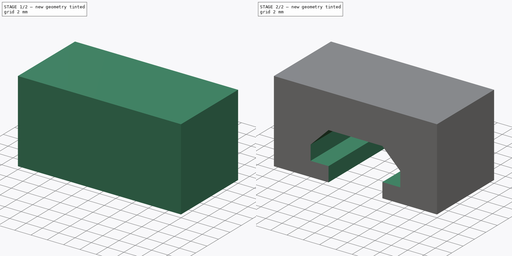
[diagram: build sequence overview — one tinted view per stage of 2, left to right]
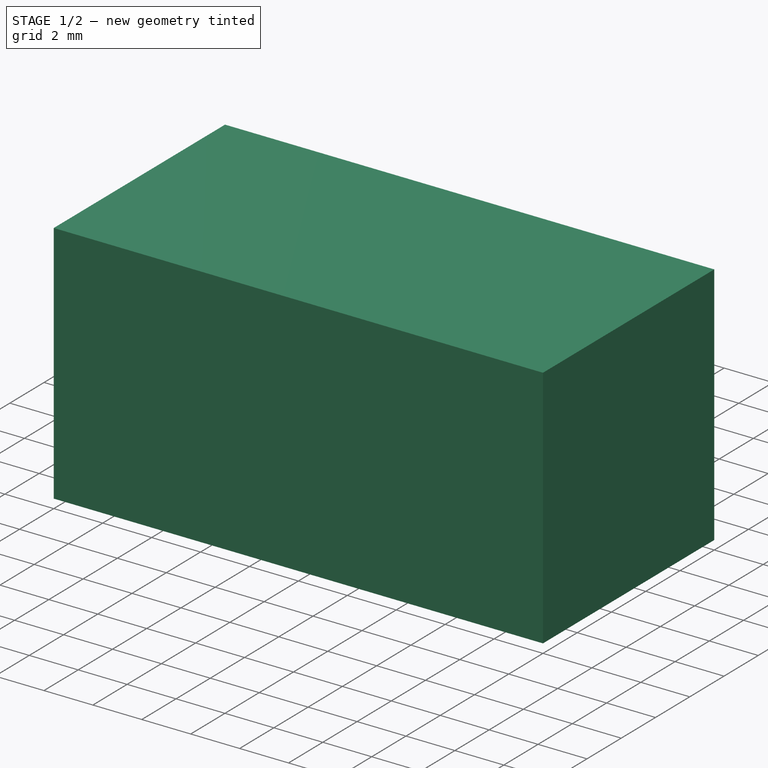
[diagram: stage 1 of 2 — iso view after this stage's code; geometry added in this stage tinted green]
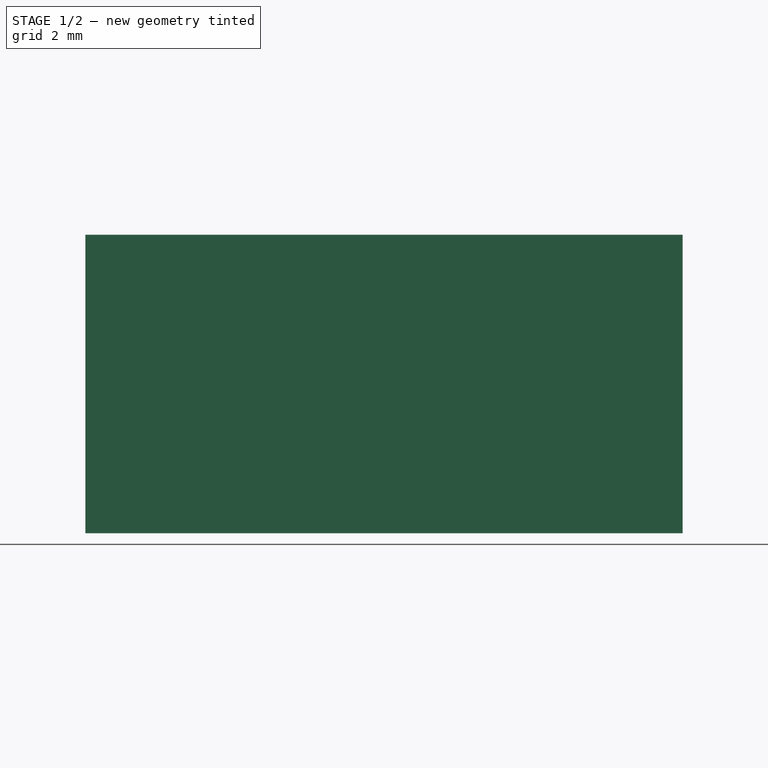
[diagram: stage 1 of 2 — front view after this stage's code; geometry added in this stage tinted green]
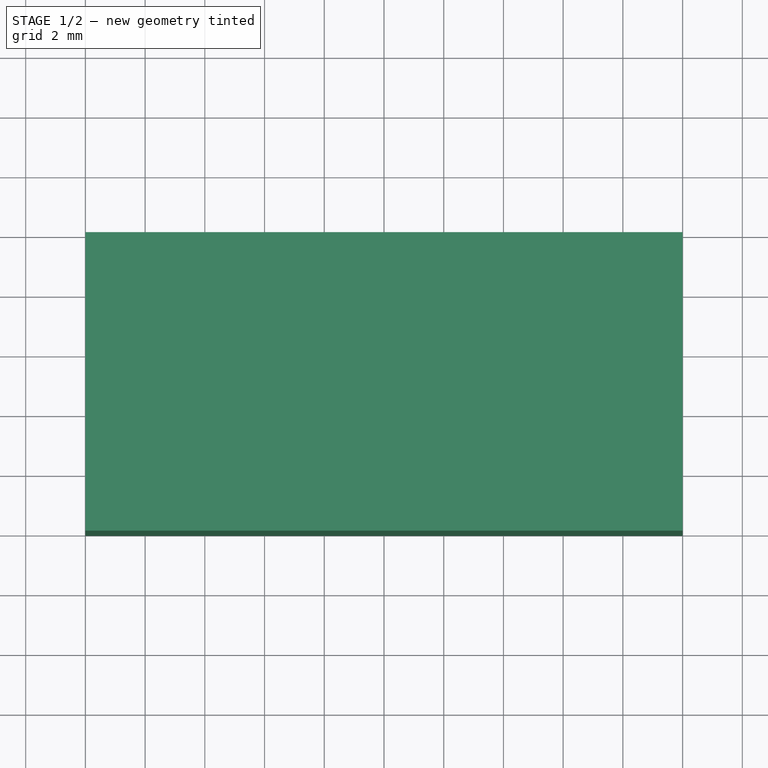
[diagram: stage 1 of 2 — top view after this stage's code; geometry added in this stage tinted green]
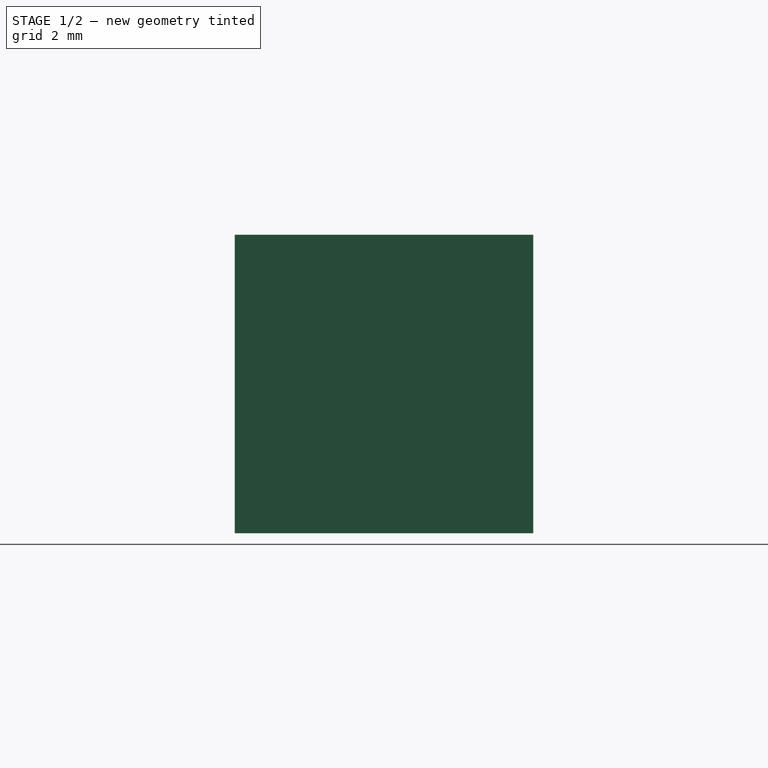
[diagram: stage 1 of 2 — right view after this stage's code; geometry added in this stage tinted green]
FCSTD DOCUMENT  (FreeCAD 1.0R39109 (Git))
Label: 05 Rail Slot
License: All rights reserved
LicenseURL: https://en.wikipedia.org/wiki/All_rights_reserved
objects: Sketcher::SketchObject×2, PartDesign::Pad×1, PartDesign::Pocket×1, PartDesign::Body×1
note: 11 computed .brp shape members not serialized (recipe doc carries the construction recipe); baked Part::Feature solids carry a one-line shape summary decoded from their .brp

FEATURE [Sketcher::SketchObject] Sketch
  ArcFitTolerance = 1e-06
  AttachmentSupport = -> [XZ_Plane]
  FullyConstrained = true
  MakeInternals = false
  MapMode = 5
  Placement = pos=(0,0,0) rot=(1,0,0;1.5708rad)
  sketch-geometry (4):
    g0: LineSegment StartX=-10 StartY=10 StartZ=0 EndX=-10 EndY=0 EndZ=0
    g1: LineSegment StartX=-10 StartY=0 StartZ=0 EndX=10 EndY=0 EndZ=0
    g2: LineSegment StartX=10 StartY=0 StartZ=0 EndX=10 EndY=10 EndZ=0
    g3: LineSegment StartX=10 StartY=10 StartZ=0 EndX=-10 EndY=10 EndZ=0
  constraints (12):
    c: Coincident(g0,g1)
    c: Coincident(g1,g2)
    c: Coincident(g2,g3)
    c: Coincident(g3,g0)
    c: Vertical(g0)
    c: Vertical(g2)
    c: Horizontal(g1)
    c: Horizontal(g3)
    c: Distance(g0,g2) = 20
    c: Distance(g1,g3) = 10
    c: DistanceY(g-1,g0) = 0
    c: DistanceX(g0,g-1) = 10
FEATURE [PartDesign::Pad] Pad
  Direction = (0,-1,2e-16)
  Length = 10
  Length2 = 10
  Placement = pos=(0,0,0) rot=(1,0,0;1.5708rad)
  Profile = -> Sketch
  ReferenceAxis = -> Sketch [N_Axis]
  Refine = true
  Suppressed = false
  Type = 0
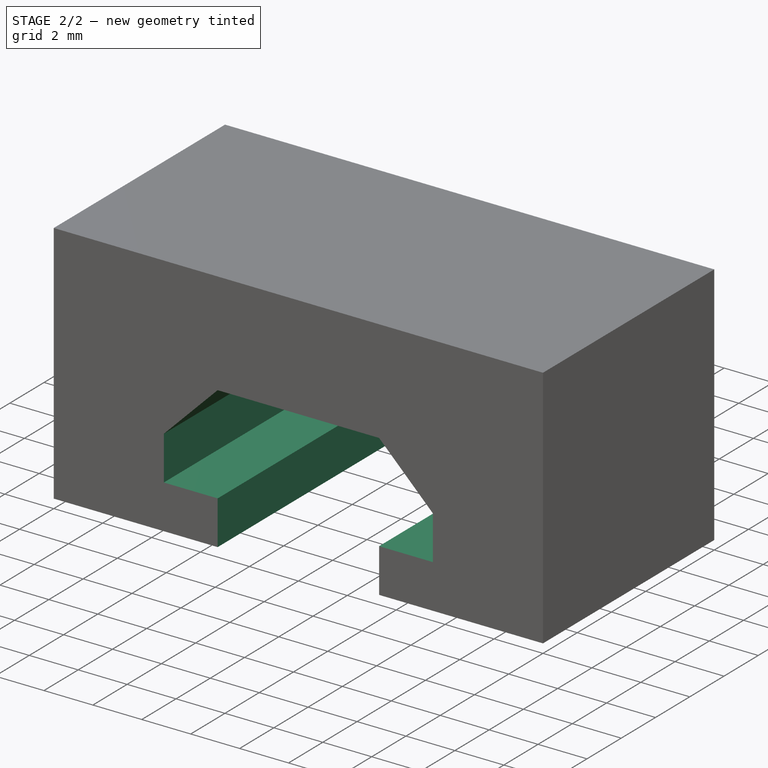
[diagram: stage 2 of 2 — iso view after this stage's code; geometry added in this stage tinted green]
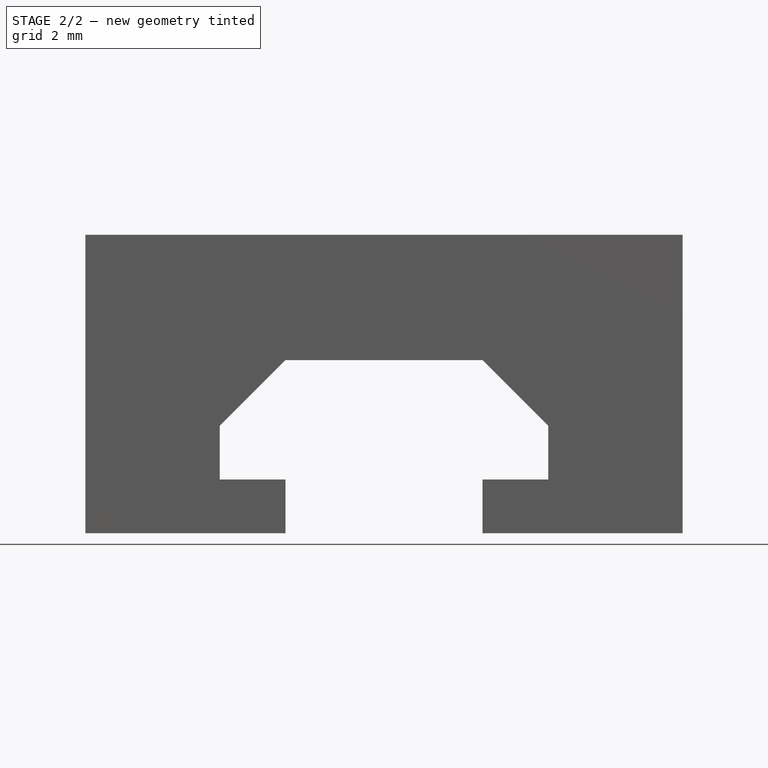
[diagram: stage 2 of 2 — front view after this stage's code; geometry added in this stage tinted green]
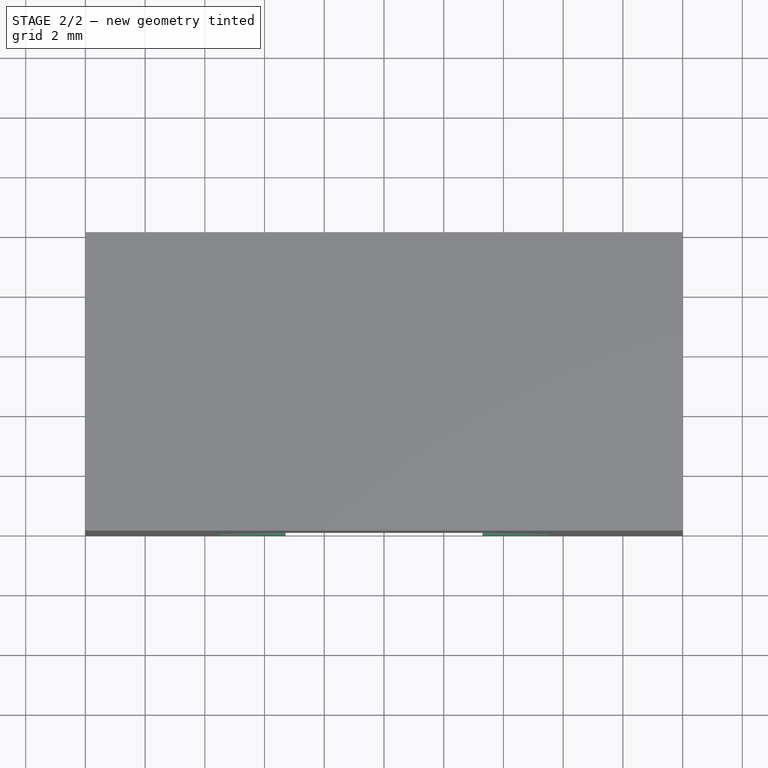
[diagram: stage 2 of 2 — top view after this stage's code; geometry added in this stage tinted green]
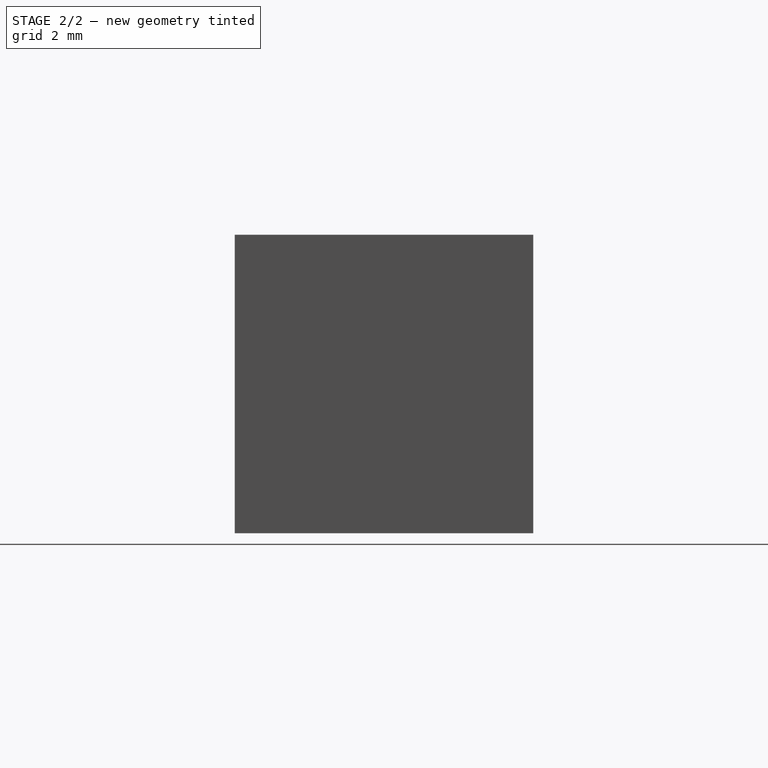
[diagram: stage 2 of 2 — right view after this stage's code; geometry added in this stage tinted green]
FEATURE [Sketcher::SketchObject] Sketch001
  ArcFitTolerance = 1e-06
  AttachmentSupport = -> [Pad]
  FullyConstrained = true
  MakeInternals = false
  MapMode = 5
  Placement = pos=(0,-10,0) rot=(1,0,0;1.5708rad)
  sketch-geometry (10):
    g0: LineSegment StartX=-3.3 StartY=0 StartZ=0 EndX=3.3 EndY=0 EndZ=0
    g1: LineSegment StartX=3.3 StartY=0 StartZ=0 EndX=3.3 EndY=1.8 EndZ=0
    g2: LineSegment StartX=3.3 StartY=1.8 StartZ=0 EndX=5.5 EndY=1.8 EndZ=0
    g3: LineSegment StartX=5.5 StartY=1.8 StartZ=0 EndX=5.5 EndY=3.6 EndZ=0
    g4: LineSegment StartX=5.5 StartY=3.6 StartZ=0 EndX=3.3 EndY=5.8 EndZ=0
    g5: LineSegment StartX=3.3 StartY=5.8 StartZ=0 EndX=-3.3 EndY=5.8 EndZ=0
    g6: LineSegment StartX=-3.3 StartY=5.8 StartZ=0 EndX=-5.5 EndY=3.6 EndZ=0
    g7: LineSegment StartX=-5.5 StartY=3.6 StartZ=0 EndX=-5.5 EndY=1.8 EndZ=0
    g8: LineSegment StartX=-5.5 StartY=1.8 StartZ=0 EndX=-3.3 EndY=1.8 EndZ=0
    g9: LineSegment StartX=-3.3 StartY=1.8 StartZ=0 EndX=-3.3 EndY=0 EndZ=0
  constraints (30):
    c: Horizontal(g0)
    c: Coincident(g0,g1)
    c: Coincident(g1,g2)
    c: Coincident(g2,g3)
    c: Coincident(g3,g4)
    c: Coincident(g4,g5)
    c: Horizontal(g5)
    c: Coincident(g5,g6)
    c: Coincident(g6,g7)
    c: Vertical(g7)
    c: Coincident(g7,g8)
    c: Horizontal(g8)
    c: Coincident(g8,g9)
    c: Coincident(g9,g0)
    c: Vertical(g9)
    c: Horizontal(g2)
    c: Vertical(g1)
    c: Vertical(g3)
    c: Distance(g0) = 6.6
    c: Distance(g9) = 1.8
    c: Distance(g1) = 1.8
    c: Distance(g8) = 2.2
    c: Distance(g2) = 2.2
    c: Distance(g7) = 1.8
    c: Distance(g3) = 1.8
    c: Distance(g5) = 6.6
    c: Angle(g-1,g6) = 0.785398
    c: Angle(g4,g-1) = 0.785398
    c: DistanceY(g-1,g0) = 0
    c: DistanceX(g0,g-1) = 3.3
FEATURE [PartDesign::Pocket] Pocket
  BaseFeature = -> Pad
  Direction = (0,1,-2e-16)
  Length = 5
  Length2 = 5
  Placement = pos=(0,0,0) rot=(1,0,0;1.5708rad)
  Profile = -> Sketch001
  ReferenceAxis = -> Sketch001 [N_Axis]
  Refine = true
  Suppressed = false
  Type = 1
FEATURE [PartDesign::Body] Body
  AllowCompound = false
  Group = -> [Sketch,Pad,Sketch001,Pocket]
  Origin = -> Origin
  Tip = -> Pocket
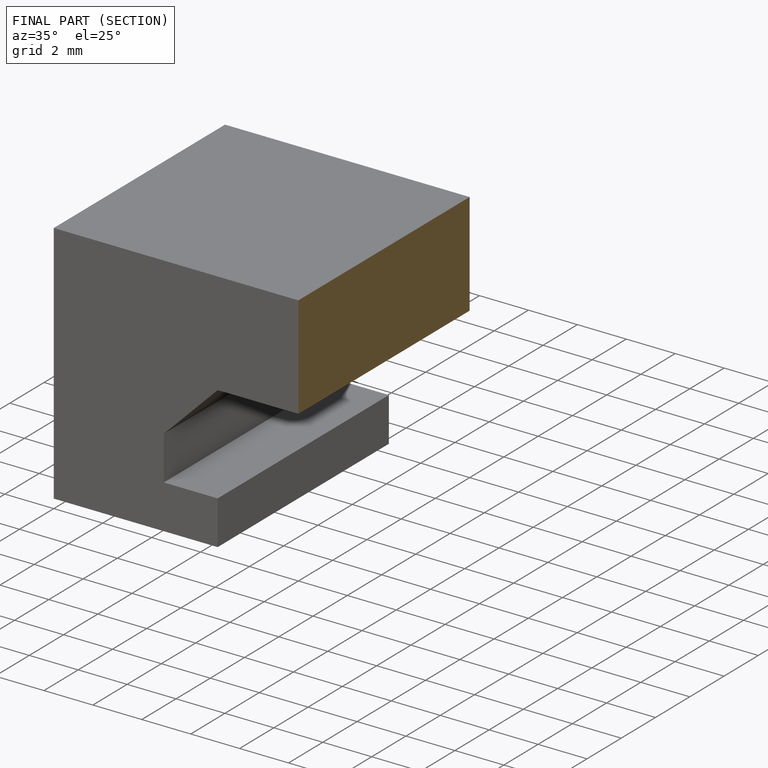
[diagram: finished part — half-section view (interior)]
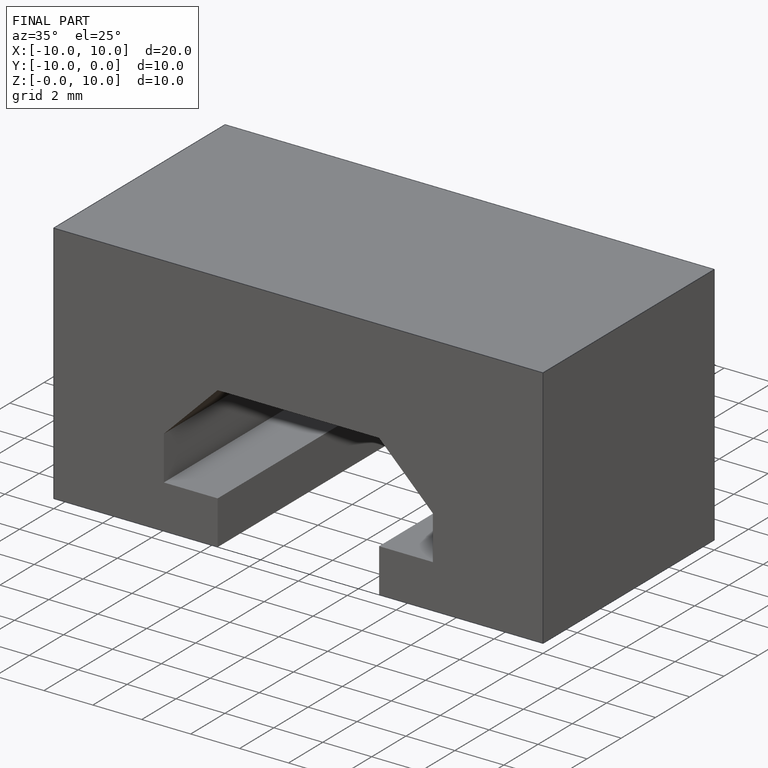
[diagram: finished part — iso view with bounding-box wireframe]
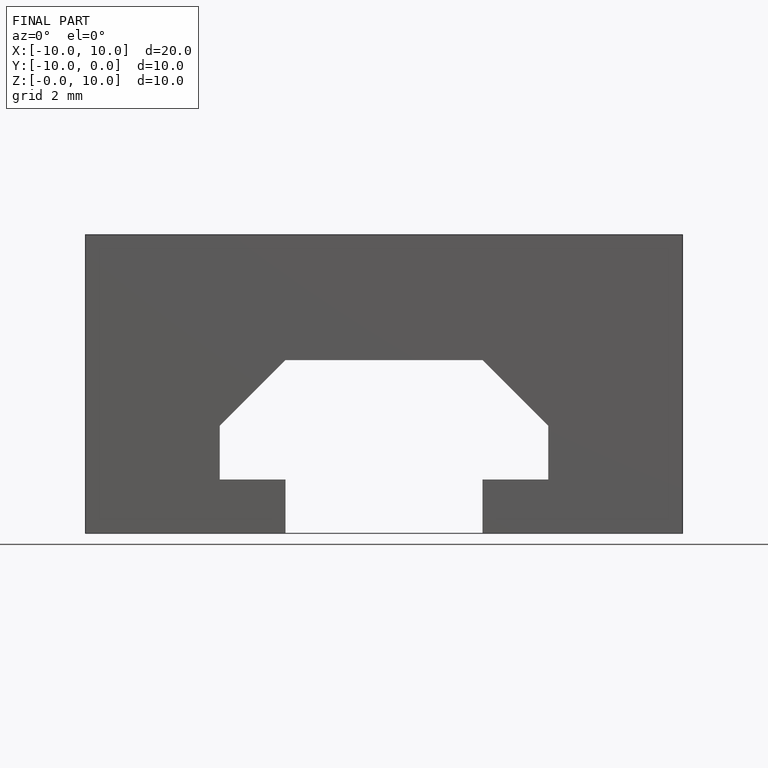
[diagram: finished part — front view with bounding-box wireframe]
